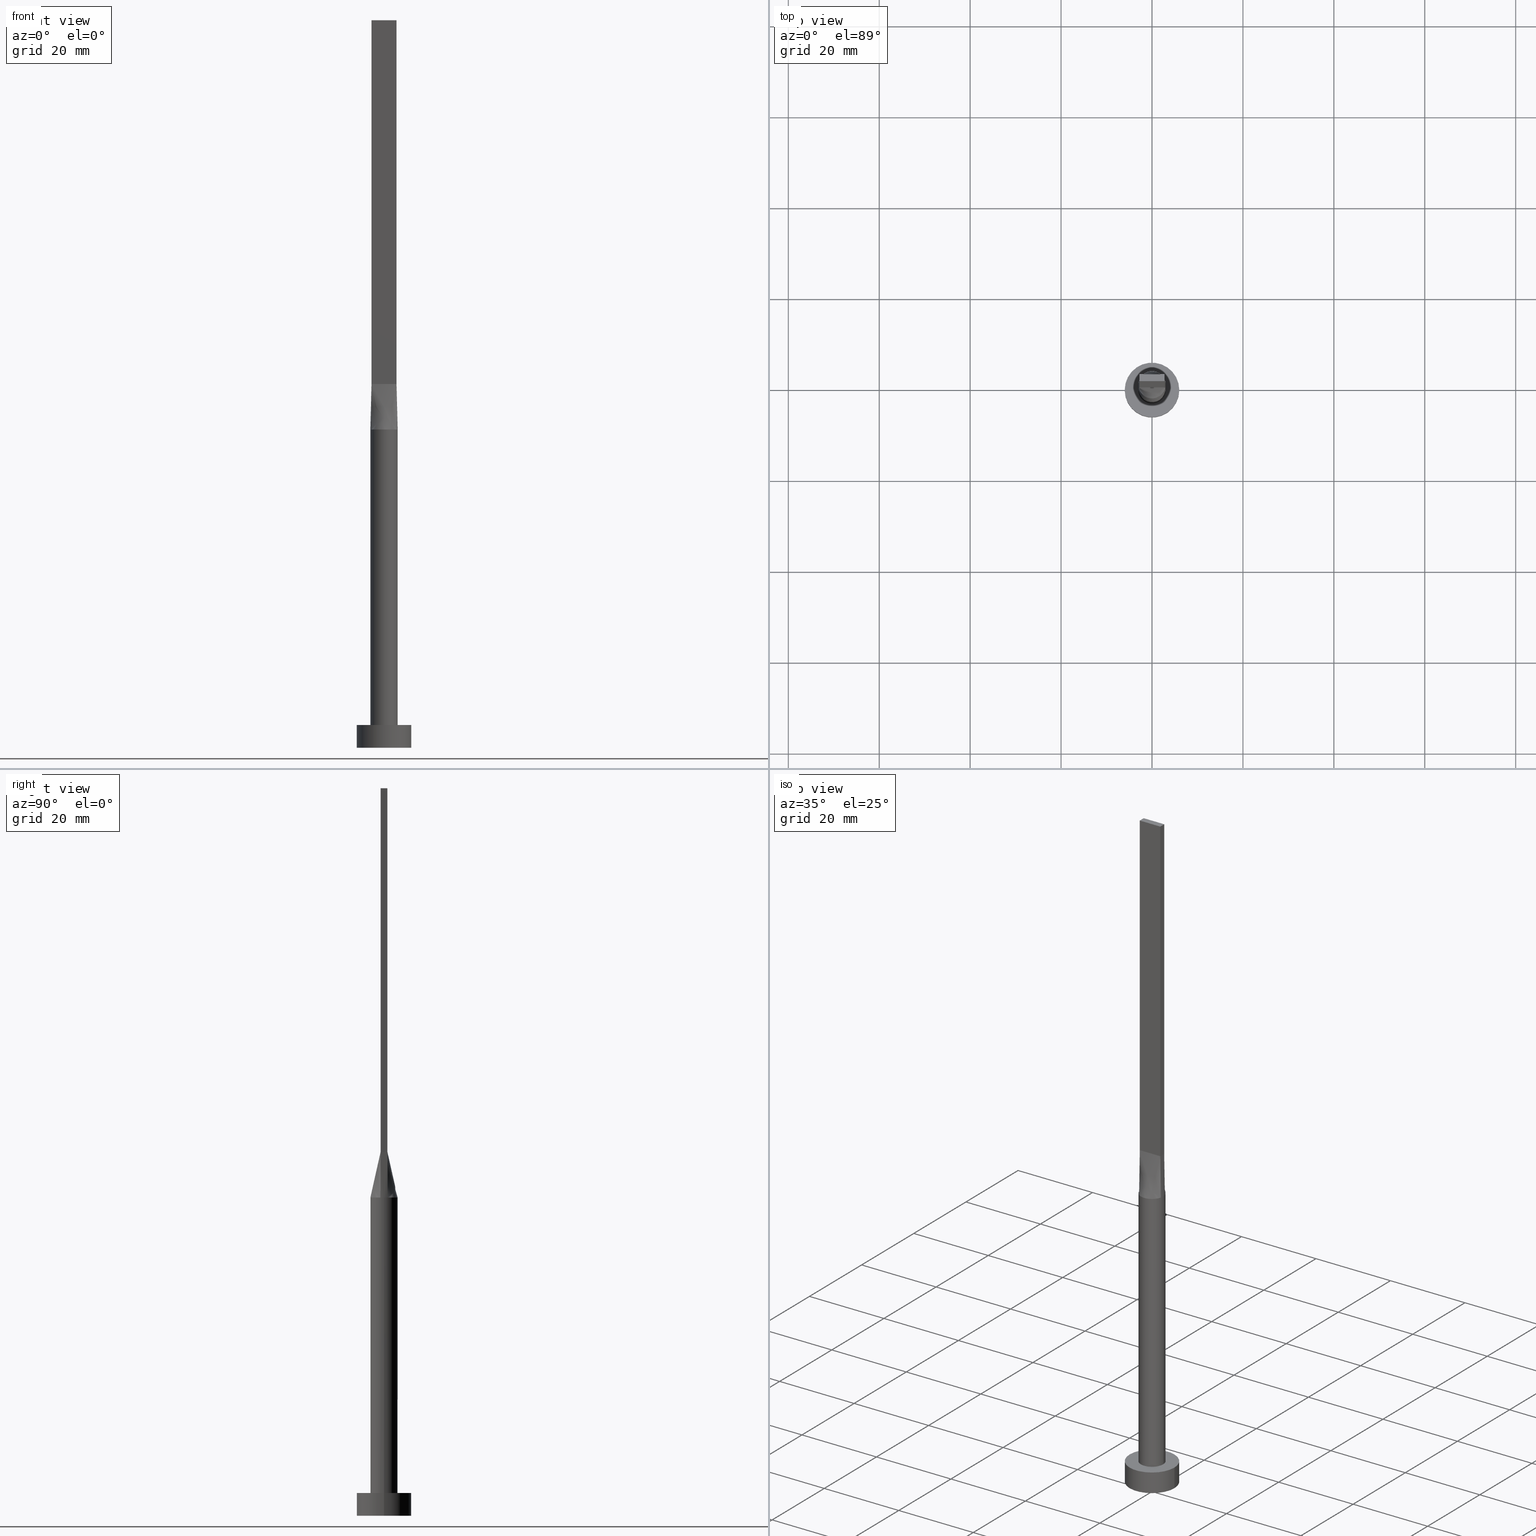
[diagram: canonical four-view strip — front | top / right | iso, engineering-drawing reading convention]
A machine part, canonical four-view strip (front | top / right | iso — engineering-drawing reading convention). The complete STEP part file that produces these views, byte-faithful:
ISO-10303-21;
HEADER;
FILE_DESCRIPTION (( 'STEP AP203' ),
    '1' );
FILE_NAME ('e4d2.STEP',
    '2023-02-13T11:39:31',
    ( '' ),
    ( '' ),
    'SwSTEP 2.0',
    'SolidWorks 2019',
    '' );
FILE_SCHEMA (( 'CONFIG_CONTROL_DESIGN' ));
ENDSEC;

DATA;
#1 = CARTESIAN_POINT ( 'NONE',  ( -1.833333333333335258, -0.7499999999999995559, 79.99999999999998579 ) ) ;
#2 = CARTESIAN_POINT ( 'NONE',  ( -2.442412046818596139, 1.765588549521969641, 70.00000000000001421 ) ) ;
#3 = LINE ( 'NONE', #549, #202 ) ;
#4 = CARTESIAN_POINT ( 'NONE',  ( -2.822145731856598783, -0.7696761086881626079, 75.00000000000001421 ) ) ;
#5 = DIRECTION ( 'NONE',  ( 0.000000000000000000, 0.000000000000000000, 1.000000000000000000 ) ) ;
#6 = CARTESIAN_POINT ( 'NONE',  ( 3.000000000000000888, 4.817174831141495148E-17, 70.00000000000000000 ) ) ;
#7 = VECTOR ( 'NONE', #359, 1000.000000000000000 ) ;
#8 = DIRECTION ( 'NONE',  ( 0.000000000000000000, 0.000000000000000000, 1.000000000000000000 ) ) ;
#9 = CARTESIAN_POINT ( 'NONE',  ( -2.999999999999999112, -0.2678361673275861388, 70.00000000000000000 ) ) ;
#10 = CARTESIAN_POINT ( 'NONE',  ( -2.750000000000000000, 0.7500000000000002220, 80.00000000000000000 ) ) ;
#11 = EDGE_CURVE ( 'NONE', #215, #514, #333, .T. ) ;
#12 = CARTESIAN_POINT ( 'NONE',  ( -2.520833333333333925, -0.7499999999999994449, 79.99999999999998579 ) ) ;
#13 = CARTESIAN_POINT ( 'NONE',  ( -1.751288851749021491, 2.458468820606022565, 70.00000000000001421 ) ) ;
#14 = CARTESIAN_POINT ( 'NONE',  ( 2.750000000000000000, -0.7499999999999997780, 80.00000000000000000 ) ) ;
#15 = EDGE_LOOP ( 'NONE', ( #210, #364, #472, #525, #371 ) ) ;
#16 =( LENGTH_UNIT ( ) NAMED_UNIT ( * ) SI_UNIT ( .MILLI., .METRE. ) );
#17 = VERTEX_POINT ( 'NONE', #42 ) ;
#18 = ORIENTED_EDGE ( 'NONE', *, *, #462, .T. ) ;
#19 = APPROVAL_STATUS ( 'not_yet_approved' ) ;
#20 = VERTEX_POINT ( 'NONE', #184 ) ;
#21 = CARTESIAN_POINT ( 'NONE',  ( -2.750000000000000000, -0.4999999999999994449, 79.99999999999998579 ) ) ;
#22 = DIRECTION ( 'NONE',  ( -0.000000000000000000, -0.000000000000000000, -1.000000000000000000 ) ) ;
#23 = VERTEX_POINT ( 'NONE', #412 ) ;
#24 = DIRECTION ( 'NONE',  ( -0.000000000000000000, -0.000000000000000000, -1.000000000000000000 ) ) ;
#25 = CARTESIAN_POINT ( 'NONE',  ( 2.291666666666665630, -0.7499999999999997780, 79.99999999999998579 ) ) ;
#26 = ORIENTED_EDGE ( 'NONE', *, *, #126, .F. ) ;
#27 = ORIENTED_EDGE ( 'NONE', *, *, #141, .F. ) ;
#28 = CARTESIAN_POINT ( 'NONE',  ( -2.894506632021299541, 0.7894116946786272626, 70.00000000000000000 ) ) ;
#29 = PERSON ( 'NEUR�EN�', 'NEUR�EN�', 'NEUR�EN�', ('NEUR�EN�'), ('NEUR�EN�'), ('NEUR�EN�') ) ;
#30 = PERSON_AND_ORGANIZATION ( #29, #209 ) ;
#31 = VERTEX_POINT ( 'NONE', #6 ) ;
#32 = CARTESIAN_POINT ( 'NONE',  ( 0.7628506052746800714, 2.924692134573154689, 70.00000000000001421 ) ) ;
#33 = CARTESIAN_POINT ( 'NONE',  ( 0.7628506052746800714, 2.924692134573154689, 70.00000000000001421 ) ) ;
#34 = APPROVAL_ROLE ( '' ) ;
#35 = CARTESIAN_POINT ( 'NONE',  ( 0.3818979204996085230, 3.000000000000001332, 70.00000000000000000 ) ) ;
#36 = AXIS2_PLACEMENT_3D ( 'NONE', #227, #494, #497 ) ;
#37 = CIRCLE ( 'NONE', #424, 3.000000000000000444 ) ;
#38 = CARTESIAN_POINT ( 'NONE',  ( -2.520833333333333037, 0.7500000000000002220, 79.99999999999998579 ) ) ;
#39 = APPROVAL_STATUS ( 'not_yet_approved' ) ;
#40 = B_SPLINE_SURFACE_WITH_KNOTS ( 'NONE', 3, 1, ( 
 ( #91, #10 ),
 ( #286, #544 ),
 ( #330, #423 ),
 ( #9, #557 ),
 ( #301, #21 ),
 ( #517, #201 ) ),
 .UNSPECIFIED., .F., .F., .F.,
 ( 4, 2, 4 ),
 ( 2, 2 ),
 ( 0.000000000000000000, 0.5000000000000000000, 1.000000000000000000 ),
 ( 0.000000000000000000, 1.000000000000000000 ),
 .UNSPECIFIED. ) ;
#41 = CARTESIAN_POINT ( 'NONE',  ( -2.750000000000000000, 0.7500000000000002220, 160.0000000000000000 ) ) ;
#42 = CARTESIAN_POINT ( 'NONE',  ( 3.000000000000000444, 3.673940397442060361E-16, 5.000000000000000000 ) ) ;
#43 = CARTESIAN_POINT ( 'NONE',  ( -2.750000000000000000, 0.7500000000000002220, 80.00000000000000000 ) ) ;
#44 = APPROVAL_PERSON_ORGANIZATION ( #254, #280, #304 ) ;
#45 = ORIENTED_EDGE ( 'NONE', *, *, #213, .F. ) ;
#46 = CARTESIAN_POINT ( 'NONE',  ( 0.9166666666666637431, -0.7499999999999995559, 79.99999999999998579 ) ) ;
#47 = LINE ( 'NONE', #256, #56 ) ;
#48 = FACE_OUTER_BOUND ( 'NONE', #484, .T. ) ;
#49 = ORIENTED_EDGE ( 'NONE', *, *, #235, .T. ) ;
#50 = CARTESIAN_POINT ( 'NONE',  ( -0.4583333333333366455, -0.7499999999999995559, 79.99999999999998579 ) ) ;
#51 = CARTESIAN_POINT ( 'NONE',  ( -1.833333333333332149, 0.7500000000000002220, 79.99999999999998579 ) ) ;
#52 = CC_DESIGN_DATE_AND_TIME_ASSIGNMENT ( #129, #172, ( #421 ) ) ;
#53 = ORIENTED_EDGE ( 'NONE', *, *, #569, .F. ) ;
#54 = LINE ( 'NONE', #417, #118 ) ;
#55 = DIRECTION ( 'NONE',  ( -0.000000000000000000, -0.000000000000000000, -1.000000000000000000 ) ) ;
#56 = VECTOR ( 'NONE', #218, 1000.000000000000114 ) ;
#57 = CARTESIAN_POINT ( 'NONE',  ( 2.733316749964666670, -1.269511353635832229, 69.99999999999998579 ) ) ;
#58 = APPROVAL_PERSON_ORGANIZATION ( #395, #388, #223 ) ;
#59 = DIRECTION ( 'NONE',  ( 1.000000000000000000, 0.000000000000000000, 0.000000000000000000 ) ) ;
#60 = CYLINDRICAL_SURFACE ( 'NONE', #153, 6.000000000000000888 ) ;
#61 = CARTESIAN_POINT ( 'NONE',  ( 0.000000000000000000, 0.000000000000000000, 70.00000000000000000 ) ) ;
#62 = PLANE ( 'NONE',  #163 ) ;
#63 = ADVANCED_FACE ( 'NONE', ( #407 ), #291, .T. ) ;
#64 = CARTESIAN_POINT ( 'NONE',  ( 2.963522232943966106, -0.5355060635301738259, 70.00000000000001421 ) ) ;
#65 =( NAMED_UNIT ( * ) SI_UNIT ( $, .STERADIAN. ) SOLID_ANGLE_UNIT ( ) );
#66 = CIRCLE ( 'NONE', #274, 6.000000000000000888 ) ;
#67 = ORIENTED_EDGE ( 'NONE', *, *, #298, .F. ) ;
#68 = CARTESIAN_POINT ( 'NONE',  ( 6.000000000000000888, 7.347880794884120722E-16, 5.000000000000000000 ) ) ;
#69 = APPLICATION_PROTOCOL_DEFINITION ( 'international standard', 'config_control_design', 1994, #562 ) ;
#70 = ORIENTED_EDGE ( 'NONE', *, *, #403, .F. ) ;
#71 = CARTESIAN_POINT ( 'NONE',  ( 3.000000000000000888, -0.2678361673275873600, 70.00000000000000000 ) ) ;
#72 = ORIENTED_EDGE ( 'NONE', *, *, #464, .T. ) ;
#73 = ORIENTED_EDGE ( 'NONE', *, *, #237, .T. ) ;
#74 = CC_DESIGN_PERSON_AND_ORGANIZATION_ASSIGNMENT ( #513, #467, ( #419 ) ) ;
#75 = CARTESIAN_POINT ( 'NONE',  ( 3.000000000000000444, 0.2678361673275868049, 70.00000000000000000 ) ) ;
#76 = VERTEX_POINT ( 'NONE', #536 ) ;
#77 = AXIS2_PLACEMENT_3D ( 'NONE', #258, #382, #157 ) ;
#78 = CARTESIAN_POINT ( 'NONE',  ( -2.442412046818596139, 1.765588549521969641, 70.00000000000001421 ) ) ;
#79 = SECURITY_CLASSIFICATION_LEVEL ( 'unclassified' ) ;
#80 = CARTESIAN_POINT ( 'NONE',  ( 1.447928580458859305, 2.653161878569118670, 70.00000000000000000 ) ) ;
#81 = EDGE_CURVE ( 'NONE', #173, #426, #185, .T. ) ;
#82 = SHAPE_DEFINITION_REPRESENTATION ( #310, #509 ) ;
#83 = AXIS2_PLACEMENT_3D ( 'NONE', #61, #195, #229 ) ;
#84 = COORDINATED_UNIVERSAL_TIME_OFFSET ( 1, 0, .AHEAD. ) ;
#85 = CARTESIAN_POINT ( 'NONE',  ( 2.520833333333333481, 0.7500000000000002220, 79.99999999999998579 ) ) ;
#86 = DIRECTION ( 'NONE',  ( -0.01442753284129401174, 0.003934781683989412894, 0.9998881756422629552 ) ) ;
#87 = EDGE_CURVE ( 'NONE', #514, #255, #130, .T. ) ;
#88 = FACE_OUTER_BOUND ( 'NONE', #217, .T. ) ;
#89 = CARTESIAN_POINT ( 'NONE',  ( 2.750000000000000000, -0.7499999999999997780, 160.0000000000000000 ) ) ;
#90 = CARTESIAN_POINT ( 'NONE',  ( 0.000000000000000000, 0.000000000000000000, 5.000000000000000000 ) ) ;
#91 = CARTESIAN_POINT ( 'NONE',  ( -2.894291463713196677, 0.7893522173763264371, 70.00000000000000000 ) ) ;
#92 = DIRECTION ( 'NONE',  ( 0.000000000000000000, 0.000000000000000000, 1.000000000000000000 ) ) ;
#93 = CARTESIAN_POINT ( 'NONE',  ( 2.750000000000000000, 0.7500000000000002220, 160.0000000000000000 ) ) ;
#94 = ORIENTED_EDGE ( 'NONE', *, *, #552, .F. ) ;
#95 = CC_DESIGN_PERSON_AND_ORGANIZATION_ASSIGNMENT ( #572, #319, ( #243 ) ) ;
#96 = CARTESIAN_POINT ( 'NONE',  ( 0.4583333333333300397, -0.7499999999999995559, 79.99999999999998579 ) ) ;
#97 = ORIENTED_EDGE ( 'NONE', *, *, #273, .T. ) ;
#98 = CARTESIAN_POINT ( 'NONE',  ( 1.833333333333331705, -0.7499999999999997780, 79.99999999999998579 ) ) ;
#99 = ORIENTED_EDGE ( 'NONE', *, *, #298, .T. ) ;
#100 = CARTESIAN_POINT ( 'NONE',  ( 2.750000000000000000, 0.7500000000000002220, 160.0000000000000000 ) ) ;
#101 = APPROVAL_PERSON_ORGANIZATION ( #122, #438, #34 ) ;
#102 = DIRECTION ( 'NONE',  ( 1.000000000000000000, 0.000000000000000000, 0.000000000000000000 ) ) ;
#103 = FACE_OUTER_BOUND ( 'NONE', #15, .T. ) ;
#104 = EDGE_CURVE ( 'NONE', #560, #167, #539, .T. ) ;
#105 = CARTESIAN_POINT ( 'NONE',  ( -2.442412046818594806, -1.765588549521968975, 69.99999999999998579 ) ) ;
#106 = CARTESIAN_POINT ( 'NONE',  ( 2.750000000000000000, -0.2499999999999995282, 79.99999999999998579 ) ) ;
#107 = CARTESIAN_POINT ( 'NONE',  ( -2.750000000000000000, 0.7500000000000002220, 80.00000000000000000 ) ) ;
#108 = CARTESIAN_POINT ( 'NONE',  ( 2.750000000000000000, -0.7499999999999997780, 80.00000000000000000 ) ) ;
#109 = CARTESIAN_POINT ( 'NONE',  ( 1.604166666666668073, 0.7500000000000002220, 79.99999999999998579 ) ) ;
#110 = DIRECTION ( 'NONE',  ( -0.000000000000000000, 0.000000000000000000, -1.000000000000000000 ) ) ;
#111 = VERTEX_POINT ( 'NONE', #43 ) ;
#112 = VERTEX_POINT ( 'NONE', #500 ) ;
#113 = ORIENTED_EDGE ( 'NONE', *, *, #376, .F. ) ;
#114 = ORIENTED_EDGE ( 'NONE', *, *, #188, .F. ) ;
#115 = ORIENTED_EDGE ( 'NONE', *, *, #468, .T. ) ;
#116 = CARTESIAN_POINT ( 'NONE',  ( 2.750000000000000000, 0.2500000000000004441, 79.99999999999998579 ) ) ;
#117 = ORIENTED_EDGE ( 'NONE', *, *, #322, .T. ) ;
#118 = VECTOR ( 'NONE', #372, 1000.000000000000000 ) ;
#119 = VERTEX_POINT ( 'NONE', #41 ) ;
#120 = VERTEX_POINT ( 'NONE', #147 ) ;
#121 = LOCAL_TIME ( 12, 39, 31.00000000000000000, #84 ) ;
#122 = PERSON_AND_ORGANIZATION ( #29, #209 ) ;
#123 = EDGE_LOOP ( 'NONE', ( #321, #99, #294, #164, #26, #397 ) ) ;
#124 = CARTESIAN_POINT ( 'NONE',  ( -2.750000000000000000, 0.7500000000000002220, 160.0000000000000000 ) ) ;
#125 = CARTESIAN_POINT ( 'NONE',  ( -6.000000000000000888, 0.000000000000000000, 5.000000000000000000 ) ) ;
#126 = EDGE_CURVE ( 'NONE', #426, #76, #578, .T. ) ;
#127 = CARTESIAN_POINT ( 'NONE',  ( -1.751288851749021491, 2.458468820606022565, 70.00000000000001421 ) ) ;
#128 = CYLINDRICAL_SURFACE ( 'NONE', #241, 3.000000000000000444 ) ;
#129 = DATE_AND_TIME ( #317, #211 ) ;
#130 = LINE ( 'NONE', #236, #224 ) ;
#131 = AXIS2_PLACEMENT_3D ( 'NONE', #446, #231, #186 ) ;
#132 = DIRECTION ( 'NONE',  ( -0.000000000000000000, -0.000000000000000000, -1.000000000000000000 ) ) ;
#133 = AXIS2_PLACEMENT_3D ( 'NONE', #242, #547, #59 ) ;
#134 = DATE_AND_TIME ( #439, #121 ) ;
#135 = DIRECTION ( 'NONE',  ( -0.000000000000000000, -0.000000000000000000, -1.000000000000000000 ) ) ;
#136 = CARTESIAN_POINT ( 'NONE',  ( 0.000000000000000000, 0.000000000000000000, 5.000000000000000000 ) ) ;
#137 = EDGE_CURVE ( 'NONE', #76, #435, #580, .T. ) ;
#138 = ORIENTED_EDGE ( 'NONE', *, *, #367, .F. ) ;
#139 = FACE_OUTER_BOUND ( 'NONE', #165, .T. ) ;
#140 = CYLINDRICAL_SURFACE ( 'NONE', #377, 6.000000000000000888 ) ;
#141 = EDGE_CURVE ( 'NONE', #501, #514, #323, .T. ) ;
#142 = LOCAL_TIME ( 12, 39, 31.00000000000000000, #470 ) ;
#143 = CARTESIAN_POINT ( 'NONE',  ( 2.822145731856598339, -0.7696761086881637182, 75.00000000000001421 ) ) ;
#144 = ORIENTED_EDGE ( 'NONE', *, *, #367, .T. ) ;
#145 = DIRECTION ( 'NONE',  ( 1.000000000000000000, 0.000000000000000000, 0.000000000000000000 ) ) ;
#146 = CARTESIAN_POINT ( 'NONE',  ( -0.4583333333333313164, 0.7500000000000003331, 79.99999999999998579 ) ) ;
#147 = CARTESIAN_POINT ( 'NONE',  ( -6.000000000000000888, 0.000000000000000000, 5.000000000000000000 ) ) ;
#148 = DIRECTION ( 'NONE',  ( 0.000000000000000000, 0.000000000000000000, 1.000000000000000000 ) ) ;
#149 = FACE_OUTER_BOUND ( 'NONE', #545, .T. ) ;
#150 = CARTESIAN_POINT ( 'NONE',  ( 0.000000000000000000, 0.000000000000000000, 5.000000000000000000 ) ) ;
#151 = FACE_OUTER_BOUND ( 'NONE', #313, .T. ) ;
#152 = DIRECTION ( 'NONE',  ( -1.000000000000000000, 0.000000000000000000, 0.000000000000000000 ) ) ;
#153 = AXIS2_PLACEMENT_3D ( 'NONE', #150, #332, #247 ) ;
#154 = CARTESIAN_POINT ( 'NONE',  ( -2.894291463713197121, -0.7893522173763257710, 70.00000000000000000 ) ) ;
#155 = CARTESIAN_POINT ( 'NONE',  ( 2.750000000000000000, -0.7499999999999997780, 80.00000000000000000 ) ) ;
#156 = ORIENTED_EDGE ( 'NONE', *, *, #581, .F. ) ;
#157 = DIRECTION ( 'NONE',  ( 1.000000000000000000, 0.000000000000000000, 0.000000000000000000 ) ) ;
#158 = EDGE_LOOP ( 'NONE', ( #171, #138, #488, #430 ) ) ;
#159 = CARTESIAN_POINT ( 'NONE',  ( -2.822145731856598339, 0.7696761086881630520, 75.00000000000001421 ) ) ;
#160 = EDGE_CURVE ( 'NONE', #314, #119, #320, .T. ) ;
#161 =( NAMED_UNIT ( * ) PLANE_ANGLE_UNIT ( ) SI_UNIT ( $, .RADIAN. ) );
#162 = CLOSED_SHELL ( 'NONE', ( #63, #269, #306, #166, #478, #222, #535, #556, #272, #384, #328, #574, #290, #491, #175 ) ) ;
#163 = AXIS2_PLACEMENT_3D ( 'NONE', #418, #422, #366 ) ;
#164 = ORIENTED_EDGE ( 'NONE', *, *, #137, .F. ) ;
#165 = EDGE_LOOP ( 'NONE', ( #471, #309, #434, #324 ) ) ;
#166 = ADVANCED_FACE ( 'NONE', ( #445, #88 ), #281, .T. ) ;
#167 = VERTEX_POINT ( 'NONE', #287 ) ;
#168 = DIRECTION ( 'NONE',  ( 0.000000000000000000, 0.000000000000000000, 1.000000000000000000 ) ) ;
#169 = DIRECTION ( 'NONE',  ( -0.000000000000000000, -0.000000000000000000, -1.000000000000000000 ) ) ;
#170 = ORIENTED_EDGE ( 'NONE', *, *, #552, .T. ) ;
#171 = ORIENTED_EDGE ( 'NONE', *, *, #259, .T. ) ;
#172 = DATE_TIME_ROLE ( 'creation_date' ) ;
#173 = VERTEX_POINT ( 'NONE', #451 ) ;
#174 =( GEOMETRIC_REPRESENTATION_CONTEXT ( 3 ) GLOBAL_UNCERTAINTY_ASSIGNED_CONTEXT ( ( #190 ) ) GLOBAL_UNIT_ASSIGNED_CONTEXT ( ( #16, #161, #65 ) ) REPRESENTATION_CONTEXT ( 'NONE', 'WORKASPACE' ) );
#175 = ADVANCED_FACE ( 'NONE', ( #48 ), #239, .T. ) ;
#176 = LINE ( 'NONE', #125, #522 ) ;
#177 = COORDINATED_UNIVERSAL_TIME_OFFSET ( 1, 0, .AHEAD. ) ;
#178 = CARTESIAN_POINT ( 'NONE',  ( -0.3818979204996078569, 3.000000000000000888, 70.00000000000001421 ) ) ;
#179 = CARTESIAN_POINT ( 'NONE',  ( -3.000000000000000444, 0.000000000000000000, 70.00000000000000000 ) ) ;
#180 = AXIS2_PLACEMENT_3D ( 'NONE', #455, #55, #277 ) ;
#181 = CARTESIAN_POINT ( 'NONE',  ( 2.894291463713197121, 0.7893522173763263261, 70.00000000000000000 ) ) ;
#182 = CC_DESIGN_APPROVAL ( #438, ( #361 ) ) ;
#183 = CALENDAR_DATE ( 2023, 13, 2 ) ;
#184 = CARTESIAN_POINT ( 'NONE',  ( -2.750000000000000000, -0.7499999999999994449, 160.0000000000000000 ) ) ;
#185 = B_SPLINE_CURVE_WITH_KNOTS ( 'NONE', 3,
 ( #553, #307, #516, #431, #440, #394, #400, #32, #35, #178, #212, #527, #127, #477, #78, #264, #436, #28 ),
 .UNSPECIFIED., .F., .F.,
 ( 4, 2, 2, 2, 2, 2, 2, 2, 4 ),
 ( 0.000000000000000000, 0.1250000000000000000, 0.2500000000000000000, 0.3750000000000000000, 0.5000000000000000000, 0.6250000000000000000, 0.7500000000000000000, 0.8750000000000000000, 1.000000000000000000 ),
 .UNSPECIFIED. ) ;
#186 = DIRECTION ( 'NONE',  ( 1.000000000000000000, 0.000000000000000000, -0.000000000000000000 ) ) ;
#187 = CARTESIAN_POINT ( 'NONE',  ( 0.000000000000000000, 0.000000000000000000, 5.000000000000000000 ) ) ;
#188 = EDGE_CURVE ( 'NONE', #215, #314, #542, .T. ) ;
#189 = EDGE_CURVE ( 'NONE', #119, #20, #442, .T. ) ;
#190 = UNCERTAINTY_MEASURE_WITH_UNIT (LENGTH_MEASURE( 1.000000000000000082E-05 ), #16, 'distance_accuracy_value', 'NONE');
#191 = DIRECTION ( 'NONE',  ( 0.000000000000000000, 0.000000000000000000, 1.000000000000000000 ) ) ;
#192 = VECTOR ( 'NONE', #135, 1000.000000000000000 ) ;
#193 = DIRECTION ( 'NONE',  ( 0.000000000000000000, -1.000000000000000000, 0.000000000000000000 ) ) ;
#194 = DIRECTION ( 'NONE',  ( 1.000000000000000000, 0.000000000000000000, -0.000000000000000000 ) ) ;
#195 = DIRECTION ( 'NONE',  ( 0.000000000000000000, 0.000000000000000000, 1.000000000000000000 ) ) ;
#196 = CARTESIAN_POINT ( 'NONE',  ( -2.291666666666667851, -0.7499999999999995559, 79.99999999999998579 ) ) ;
#197 = CARTESIAN_POINT ( 'NONE',  ( -2.248179627679386616, -2.014142483996539390, 70.00000000000000000 ) ) ;
#198 = CARTESIAN_POINT ( 'NONE',  ( -1.145833333333331705, 0.7500000000000002220, 79.99999999999998579 ) ) ;
#199 = ORIENTED_EDGE ( 'NONE', *, *, #486, .F. ) ;
#200 = CARTESIAN_POINT ( 'NONE',  ( -2.894506632021299541, 0.7894116946786272626, 70.00000000000000000 ) ) ;
#201 = CARTESIAN_POINT ( 'NONE',  ( -2.750000000000000000, -0.7499999999999993339, 80.00000000000000000 ) ) ;
#202 = VECTOR ( 'NONE', #460, 1000.000000000000000 ) ;
#203 = APPLICATION_PROTOCOL_DEFINITION ( 'international standard', 'config_control_design', 1994, #449 ) ;
#204 = PLANE ( 'NONE',  #551 ) ;
#205 = ORIENTED_EDGE ( 'NONE', *, *, #403, .T. ) ;
#206 = DIRECTION ( 'NONE',  ( 0.01442753284129401174, -0.003934781683989196054, 0.9998881756422629552 ) ) ;
#207 = VECTOR ( 'NONE', #441, 1000.000000000000000 ) ;
#208 = CARTESIAN_POINT ( 'NONE',  ( 2.963522232943965662, 0.5355060635301733818, 70.00000000000000000 ) ) ;
#209 = ORGANIZATION ( 'NEUR�EN�', 'NEUR�EN�', '' ) ;
#210 = ORIENTED_EDGE ( 'NONE', *, *, #126, .T. ) ;
#211 = LOCAL_TIME ( 12, 39, 31.00000000000000000, #534 ) ;
#212 = CARTESIAN_POINT ( 'NONE',  ( -0.7628506052746797383, 2.924692134573155133, 70.00000000000001421 ) ) ;
#213 = EDGE_CURVE ( 'NONE', #120, #560, #176, .T. ) ;
#214 = FACE_OUTER_BOUND ( 'NONE', #158, .T. ) ;
#215 = VERTEX_POINT ( 'NONE', #271 ) ;
#216 = ORIENTED_EDGE ( 'NONE', *, *, #160, .F. ) ;
#217 = EDGE_LOOP ( 'NONE', ( #115, #72 ) ) ;
#218 = DIRECTION ( 'NONE',  ( -0.01442753284129401174, -0.003934781683989391210, 0.9998881756422629552 ) ) ;
#219 = DIRECTION ( 'NONE',  ( 0.000000000000000000, 1.000000000000000000, 0.000000000000000000 ) ) ;
#220 = APPROVAL_DATE_TIME ( #134, #388 ) ;
#221 = ORIENTED_EDGE ( 'NONE', *, *, #188, .T. ) ;
#222 = ADVANCED_FACE ( 'NONE', ( #483 ), #128, .T. ) ;
#223 = APPROVAL_ROLE ( '' ) ;
#224 = VECTOR ( 'NONE', #576, 1000.000000000000000 ) ;
#225 = CARTESIAN_POINT ( 'NONE',  ( -0.2291666666666646313, 0.7500000000000003331, 79.99999999999998579 ) ) ;
#226 = CC_DESIGN_DATE_AND_TIME_ASSIGNMENT ( #524, #275, ( #361 ) ) ;
#227 = CARTESIAN_POINT ( 'NONE',  ( 0.000000000000000000, 0.000000000000000000, 70.00000000000000000 ) ) ;
#228 = CARTESIAN_POINT ( 'NONE',  ( 0.2291666666666687113, 0.7500000000000003331, 80.00000000000000000 ) ) ;
#229 = DIRECTION ( 'NONE',  ( 1.000000000000000000, 0.000000000000000000, 0.000000000000000000 ) ) ;
#230 = VECTOR ( 'NONE', #22, 1000.000000000000000 ) ;
#231 = DIRECTION ( 'NONE',  ( 0.000000000000000000, 0.000000000000000000, 1.000000000000000000 ) ) ;
#232 = EDGE_CURVE ( 'NONE', #76, #112, #563, .T. ) ;
#233 = DIRECTION ( 'NONE',  ( 0.000000000000000000, 0.000000000000000000, 1.000000000000000000 ) ) ;
#234 = CARTESIAN_POINT ( 'NONE',  ( -1.447928580458859749, -2.653161878569118226, 70.00000000000000000 ) ) ;
#235 = EDGE_CURVE ( 'NONE', #173, #255, #47, .T. ) ;
#236 = CARTESIAN_POINT ( 'NONE',  ( 2.750000000000000000, 0.7500000000000002220, 80.00000000000000000 ) ) ;
#237 = EDGE_CURVE ( 'NONE', #255, #111, #428, .T. ) ;
#238 = EDGE_CURVE ( 'NONE', #266, #167, #267, .T. ) ;
#239 = PLANE ( 'NONE',  #507 ) ;
#240 = CARTESIAN_POINT ( 'NONE',  ( -0.2291666666666700158, -0.7499999999999995559, 80.00000000000000000 ) ) ;
#241 = AXIS2_PLACEMENT_3D ( 'NONE', #318, #24, #567 ) ;
#242 = CARTESIAN_POINT ( 'NONE',  ( 0.000000000000000000, 0.000000000000000000, 0.000000000000000000 ) ) ;
#243 = PRODUCT_DEFINITION_FORMATION_WITH_SPECIFIED_SOURCE ( 'LIBOVOLN�', '', #419, .NOT_KNOWN. ) ;
#244 = CARTESIAN_POINT ( 'NONE',  ( 0.000000000000000000, 0.000000000000000000, 70.00000000000000000 ) ) ;
#245 = CARTESIAN_POINT ( 'NONE',  ( -0.9166666666666648533, 0.7500000000000002220, 79.99999999999998579 ) ) ;
#246 = DIRECTION ( 'NONE',  ( 0.000000000000000000, -0.000000000000000000, -1.000000000000000000 ) ) ;
#247 = DIRECTION ( 'NONE',  ( -1.000000000000000000, 0.000000000000000000, 0.000000000000000000 ) ) ;
#248 = DIRECTION ( 'NONE',  ( 0.000000000000000000, 0.000000000000000000, 1.000000000000000000 ) ) ;
#249 = PLANE ( 'NONE',  #311 ) ;
#250 = CARTESIAN_POINT ( 'NONE',  ( 2.750000000000000000, -0.4999999999999995559, 79.99999999999998579 ) ) ;
#251 = ORIENTED_EDGE ( 'NONE', *, *, #396, .T. ) ;
#252 = AXIS2_PLACEMENT_3D ( 'NONE', #90, #191, #375 ) ;
#253 = CARTESIAN_POINT ( 'NONE',  ( 1.145833333333335036, 0.7500000000000003331, 79.99999999999998579 ) ) ;
#254 = PERSON_AND_ORGANIZATION ( #29, #209 ) ;
#255 = VERTEX_POINT ( 'NONE', #381 ) ;
#256 = CARTESIAN_POINT ( 'NONE',  ( 2.822145731856598339, 0.7696761086881640512, 75.00000000000001421 ) ) ;
#257 = DIRECTION ( 'NONE',  ( 5.913830031739115543E-17, 1.000000000000000000, -0.000000000000000000 ) ) ;
#258 = CARTESIAN_POINT ( 'NONE',  ( 0.000000000000000000, 0.000000000000000000, 0.000000000000000000 ) ) ;
#259 = EDGE_CURVE ( 'NONE', #111, #23, #340, .T. ) ;
#260 = VECTOR ( 'NONE', #492, 1000.000000000000000 ) ;
#261 = CARTESIAN_POINT ( 'NONE',  ( 2.520833333333333037, -0.7499999999999997780, 79.99999999999998579 ) ) ;
#262 = CIRCLE ( 'NONE', #389, 3.000000000000000444 ) ;
#263 = ORIENTED_EDGE ( 'NONE', *, *, #87, .T. ) ;
#264 = CARTESIAN_POINT ( 'NONE',  ( -2.733316749964668002, 1.269511353635830453, 70.00000000000001421 ) ) ;
#265 = DATE_AND_TIME ( #183, #523 ) ;
#266 = VERTEX_POINT ( 'NONE', #68 ) ;
#267 = LINE ( 'NONE', #344, #207 ) ;
#268 = EDGE_LOOP ( 'NONE', ( #263, #94, #114, #343 ) ) ;
#269 = ADVANCED_FACE ( 'NONE', ( #461 ), #140, .T. ) ;
#270 = CARTESIAN_POINT ( 'NONE',  ( 2.830829925251657997, 1.022044525068634302, 70.00000000000001421 ) ) ;
#271 = CARTESIAN_POINT ( 'NONE',  ( 2.750000000000000000, -0.7499999999999997780, 160.0000000000000000 ) ) ;
#272 = ADVANCED_FACE ( 'NONE', ( #103 ), #40, .T. ) ;
#273 = EDGE_CURVE ( 'NONE', #426, #111, #379, .T. ) ;
#274 = AXIS2_PLACEMENT_3D ( 'NONE', #373, #8, #408 ) ;
#275 = DATE_TIME_ROLE ( 'classification_date' ) ;
#276 = CARTESIAN_POINT ( 'NONE',  ( 2.750000000000000000, -0.7499999999999997780, 160.0000000000000000 ) ) ;
#277 = DIRECTION ( 'NONE',  ( -1.000000000000000000, 0.000000000000000000, 0.000000000000000000 ) ) ;
#278 = ORIENTED_EDGE ( 'NONE', *, *, #322, .F. ) ;
#279 = DIRECTION ( 'NONE',  ( 1.000000000000000000, 0.000000000000000000, 0.000000000000000000 ) ) ;
#280 = APPROVAL ( #19, 'NEUR�EN�' ) ;
#281 = PLANE ( 'NONE',  #131 ) ;
#282 = DIRECTION ( 'NONE',  ( -0.000000000000000000, -0.000000000000000000, -1.000000000000000000 ) ) ;
#283 = ORIENTED_EDGE ( 'NONE', *, *, #235, .F. ) ;
#284 = VECTOR ( 'NONE', #206, 1000.000000000000114 ) ;
#285 = CARTESIAN_POINT ( 'NONE',  ( 2.894514141151844910, -0.7894138151126538494, 70.00000000000000000 ) ) ;
#286 = CARTESIAN_POINT ( 'NONE',  ( -2.963522232943965662, 0.5355060635301726046, 70.00000000000001421 ) ) ;
#287 = CARTESIAN_POINT ( 'NONE',  ( 6.000000000000000888, 7.347880794884120722E-16, 0.000000000000000000 ) ) ;
#288 = CARTESIAN_POINT ( 'NONE',  ( 1.447928580458857972, -2.653161878569119558, 69.99999999999998579 ) ) ;
#289 = LINE ( 'NONE', #415, #399 ) ;
#290 = ADVANCED_FACE ( 'NONE', ( #296 ), #249, .F. ) ;
#291 = CYLINDRICAL_SURFACE ( 'NONE', #180, 3.000000000000000444 ) ;
#292 = DIRECTION ( 'NONE',  ( 1.000000000000000000, 0.000000000000000000, 0.000000000000000000 ) ) ;
#293 = CARTESIAN_POINT ( 'NONE',  ( -1.447928580458858416, 2.653161878569119558, 70.00000000000001421 ) ) ;
#294 = ORIENTED_EDGE ( 'NONE', *, *, #427, .T. ) ;
#295 = CARTESIAN_POINT ( 'NONE',  ( -3.000000000000000444, 0.000000000000000000, 5.000000000000000000 ) ) ;
#296 = FACE_OUTER_BOUND ( 'NONE', #474, .T. ) ;
#297 = CARTESIAN_POINT ( 'NONE',  ( -0.3818979204996094667, -3.000000000000000000, 70.00000000000000000 ) ) ;
#298 = EDGE_CURVE ( 'NONE', #31, #17, #54, .T. ) ;
#299 = DIRECTION ( 'NONE',  ( 1.000000000000000000, -5.329070518200751394E-15, 0.000000000000000000 ) ) ;
#300 = DIRECTION ( 'NONE',  ( 0.000000000000000000, -1.000000000000000000, 0.000000000000000000 ) ) ;
#301 = CARTESIAN_POINT ( 'NONE',  ( -2.963522232943966106, -0.5355060635301720495, 70.00000000000000000 ) ) ;
#302 = AXIS2_PLACEMENT_3D ( 'NONE', #538, #92, #532 ) ;
#303 = CARTESIAN_POINT ( 'NONE',  ( 2.750000000000000000, 0.5000000000000003331, 79.99999999999998579 ) ) ;
#304 = APPROVAL_ROLE ( '' ) ;
#305 = ORIENTED_EDGE ( 'NONE', *, *, #189, .T. ) ;
#306 = ADVANCED_FACE ( 'NONE', ( #548 ), #60, .T. ) ;
#307 = CARTESIAN_POINT ( 'NONE',  ( 2.830829925251657997, 1.022044525068634302, 70.00000000000001421 ) ) ;
#308 = EDGE_LOOP ( 'NONE', ( #393, #97, #392, #283 ) ) ;
#309 = ORIENTED_EDGE ( 'NONE', *, *, #141, .T. ) ;
#310 = PRODUCT_DEFINITION_SHAPE ( 'NONE', 'NONE',  #421 ) ;
#311 = AXIS2_PLACEMENT_3D ( 'NONE', #554, #257, #351 ) ;
#312 = CARTESIAN_POINT ( 'NONE',  ( 0.000000000000000000, 0.000000000000000000, 70.00000000000000000 ) ) ;
#313 = EDGE_LOOP ( 'NONE', ( #476, #278 ) ) ;
#314 = VERTEX_POINT ( 'NONE', #420 ) ;
#315 = CALENDAR_DATE ( 2023, 13, 2 ) ;
#316 = FACE_OUTER_BOUND ( 'NONE', #308, .T. ) ;
#317 = CALENDAR_DATE ( 2023, 13, 2 ) ;
#318 = CARTESIAN_POINT ( 'NONE',  ( 0.000000000000000000, 0.000000000000000000, 70.00000000000000000 ) ) ;
#319 = PERSON_AND_ORGANIZATION_ROLE ( 'creator' ) ;
#320 = LINE ( 'NONE', #93, #7 ) ;
#321 = ORIENTED_EDGE ( 'NONE', *, *, #396, .F. ) ;
#322 = EDGE_CURVE ( 'NONE', #167, #560, #466, .T. ) ;
#323 = LINE ( 'NONE', #143, #515 ) ;
#324 = ORIENTED_EDGE ( 'NONE', *, *, #355, .T. ) ;
#325 = PLANE ( 'NONE',  #481 ) ;
#326 = CARTESIAN_POINT ( 'NONE',  ( -1.145833333333336368, -0.7499999999999995559, 79.99999999999998579 ) ) ;
#327 = DIRECTION ( 'NONE',  ( -0.01442753284129405511, -0.003934781683989273249, -0.9998881756422629552 ) ) ;
#328 = ADVANCED_FACE ( 'NONE', ( #149 ), #331, .F. ) ;
#329 = CARTESIAN_POINT ( 'NONE',  ( -1.604166666666669183, -0.7499999999999995559, 79.99999999999998579 ) ) ;
#330 = CARTESIAN_POINT ( 'NONE',  ( -3.000000000000000000, 0.2678361673275868049, 70.00000000000000000 ) ) ;
#331 = PLANE ( 'NONE',  #541 ) ;
#332 = DIRECTION ( 'NONE',  ( -0.000000000000000000, -0.000000000000000000, -1.000000000000000000 ) ) ;
#333 = LINE ( 'NONE', #89, #353 ) ;
#334 = ORIENTED_EDGE ( 'NONE', *, *, #87, .F. ) ;
#335 = CARTESIAN_POINT ( 'NONE',  ( 0.2291666666666632990, -0.7499999999999995559, 79.99999999999998579 ) ) ;
#336 = CIRCLE ( 'NONE', #416, 3.000000000000000444 ) ;
#337 = CARTESIAN_POINT ( 'NONE',  ( -2.750000000000000000, -0.7499999999999994449, 80.00000000000000000 ) ) ;
#338 = CC_DESIGN_PERSON_AND_ORGANIZATION_ASSIGNMENT ( #30, #489, ( #421 ) ) ;
#339 = CARTESIAN_POINT ( 'NONE',  ( 2.830829925251657997, -1.022044525068636078, 70.00000000000001421 ) ) ;
#340 = LINE ( 'NONE', #107, #530 ) ;
#341 = ORIENTED_EDGE ( 'NONE', *, *, #569, .T. ) ;
#342 = CARTESIAN_POINT ( 'NONE',  ( 0.9166666666666685170, 0.7500000000000003331, 79.99999999999998579 ) ) ;
#343 = ORIENTED_EDGE ( 'NONE', *, *, #11, .T. ) ;
#344 = CARTESIAN_POINT ( 'NONE',  ( 6.000000000000000888, 7.347880794884120722E-16, 5.000000000000000000 ) ) ;
#345 = ORIENTED_EDGE ( 'NONE', *, *, #160, .T. ) ;
#346 = ORIENTED_EDGE ( 'NONE', *, *, #468, .F. ) ;
#347 = CARTESIAN_POINT ( 'NONE',  ( 2.750000000000000000, 0.7500000000000002220, 160.0000000000000000 ) ) ;
#348 = CARTESIAN_POINT ( 'NONE',  ( -2.894291463713196677, 0.7893522173763257710, 70.00000000000000000 ) ) ;
#349 = EDGE_LOOP ( 'NONE', ( #70, #495 ) ) ;
#350 = CARTESIAN_POINT ( 'NONE',  ( -2.750000000000000000, 0.7500000000000002220, 80.00000000000000000 ) ) ;
#351 = DIRECTION ( 'NONE',  ( -1.000000000000000000, 5.913830031739115543E-17, 0.000000000000000000 ) ) ;
#352 = MANIFOLD_SOLID_BREP ( 'P�idat vysunut�m5', #162 ) ;
#353 = VECTOR ( 'NONE', #282, 1000.000000000000000 ) ;
#354 = COORDINATED_UNIVERSAL_TIME_OFFSET ( 1, 0, .AHEAD. ) ;
#355 = EDGE_CURVE ( 'NONE', #23, #112, #410, .T. ) ;
#356 = APPROVAL_DATE_TIME ( #265, #438 ) ;
#357 = CARTESIAN_POINT ( 'NONE',  ( -2.750000000000000000, 0.7500000000000002220, 160.0000000000000000 ) ) ;
#358 = CARTESIAN_POINT ( 'NONE',  ( 0.3818979204996085230, 3.000000000000001332, 70.00000000000000000 ) ) ;
#359 = DIRECTION ( 'NONE',  ( -1.000000000000000000, 0.000000000000000000, 0.000000000000000000 ) ) ;
#360 = CC_DESIGN_PERSON_AND_ORGANIZATION_ASSIGNMENT ( #363, #404, ( #361 ) ) ;
#361 = SECURITY_CLASSIFICATION ( '', '', #79 ) ;
#362 = CARTESIAN_POINT ( 'NONE',  ( 2.442412046818595250, 1.765588549521970529, 70.00000000000000000 ) ) ;
#363 = PERSON_AND_ORGANIZATION ( #29, #209 ) ;
#364 = ORIENTED_EDGE ( 'NONE', *, *, #232, .T. ) ;
#365 = CARTESIAN_POINT ( 'NONE',  ( -0.7628506052746809596, -2.924692134573154245, 70.00000000000000000 ) ) ;
#366 = DIRECTION ( 'NONE',  ( 0.000000000000000000, 0.000000000000000000, 1.000000000000000000 ) ) ;
#367 = EDGE_CURVE ( 'NONE', #20, #23, #289, .T. ) ;
#368 = EDGE_LOOP ( 'NONE', ( #568, #453, #117, #45 ) ) ;
#369 = CARTESIAN_POINT ( 'NONE',  ( 2.248179627679384840, -2.014142483996542055, 69.99999999999998579 ) ) ;
#370 = B_SPLINE_SURFACE_WITH_KNOTS ( 'NONE', 3, 1, ( 
 ( #154, #337 ),
 ( #414, #12 ),
 ( #505, #196 ),
 ( #105, #1 ),
 ( #197, #329 ),
 ( #540, #326 ),
 ( #234, #450 ),
 ( #365, #50 ),
 ( #297, #240 ),
 ( #504, #335 ),
 ( #502, #96 ),
 ( #288, #46 ),
 ( #409, #452 ),
 ( #369, #543 ),
 ( #506, #98 ),
 ( #57, #25 ),
 ( #339, #261 ),
 ( #555, #108 ) ),
 .UNSPECIFIED., .F., .F., .F.,
 ( 4, 2, 2, 2, 2, 2, 2, 2, 4 ),
 ( 2, 2 ),
 ( 0.000000000000000000, 0.1250000000000000000, 0.2500000000000000000, 0.3750000000000000000, 0.5000000000000000000, 0.6250000000000000000, 0.7500000000000000000, 0.8750000000000000000, 1.000000000000000000 ),
 ( 0.000000000000000000, 1.000000000000000000 ),
 .UNSPECIFIED. ) ;
#371 = ORIENTED_EDGE ( 'NONE', *, *, #273, .F. ) ;
#372 = DIRECTION ( 'NONE',  ( -0.000000000000000000, -0.000000000000000000, -1.000000000000000000 ) ) ;
#373 = CARTESIAN_POINT ( 'NONE',  ( 0.000000000000000000, 0.000000000000000000, 5.000000000000000000 ) ) ;
#374 = CARTESIAN_POINT ( 'NONE',  ( -1.604166666666665186, 0.7500000000000002220, 79.99999999999998579 ) ) ;
#375 = DIRECTION ( 'NONE',  ( 1.000000000000000000, 0.000000000000000000, 0.000000000000000000 ) ) ;
#376 = EDGE_CURVE ( 'NONE', #119, #111, #546, .T. ) ;
#377 = AXIS2_PLACEMENT_3D ( 'NONE', #136, #499, #152 ) ;
#378 = CC_DESIGN_APPROVAL ( #280, ( #421 ) ) ;
#379 = LINE ( 'NONE', #159, #284 ) ;
#380 = MECHANICAL_CONTEXT ( 'NONE', #449, 'mechanical' ) ;
#381 = CARTESIAN_POINT ( 'NONE',  ( 2.750000000000000000, 0.7500000000000002220, 80.00000000000000000 ) ) ;
#382 = DIRECTION ( 'NONE',  ( 0.000000000000000000, 0.000000000000000000, 1.000000000000000000 ) ) ;
#383 = EDGE_LOOP ( 'NONE', ( #519, #346, #386, #520 ) ) ;
#384 = ADVANCED_FACE ( 'NONE', ( #316 ), #566, .T. ) ;
#385 = DIRECTION ( 'NONE',  ( 1.000000000000000000, 0.000000000000000000, -0.000000000000000000 ) ) ;
#386 = ORIENTED_EDGE ( 'NONE', *, *, #213, .T. ) ;
#387 = VECTOR ( 'NONE', #571, 1000.000000000000000 ) ;
#388 = APPROVAL ( #573, 'NEUR�EN�' ) ;
#389 = AXIS2_PLACEMENT_3D ( 'NONE', #463, #233, #292 ) ;
#390 = ORIENTED_EDGE ( 'NONE', *, *, #232, .F. ) ;
#391 = CARTESIAN_POINT ( 'NONE',  ( -2.750000000000000000, 0.7500000000000002220, 160.0000000000000000 ) ) ;
#392 = ORIENTED_EDGE ( 'NONE', *, *, #237, .F. ) ;
#393 = ORIENTED_EDGE ( 'NONE', *, *, #81, .T. ) ;
#394 = CARTESIAN_POINT ( 'NONE',  ( 1.751288851749022379, 2.458468820606022565, 70.00000000000001421 ) ) ;
#395 = PERSON_AND_ORGANIZATION ( #29, #209 ) ;
#396 = EDGE_CURVE ( 'NONE', #31, #173, #579, .T. ) ;
#397 = ORIENTED_EDGE ( 'NONE', *, *, #81, .F. ) ;
#398 = APPROVAL_DATE_TIME ( #487, #280 ) ;
#399 = VECTOR ( 'NONE', #454, 1000.000000000000000 ) ;
#400 = CARTESIAN_POINT ( 'NONE',  ( 1.447928580458859305, 2.653161878569118670, 70.00000000000000000 ) ) ;
#401 = CARTESIAN_POINT ( 'NONE',  ( 2.733316749964668446, 1.269511353635831341, 70.00000000000000000 ) ) ;
#402 = CARTESIAN_POINT ( 'NONE',  ( -0.7628506052746797383, 2.924692134573155133, 70.00000000000001421 ) ) ;
#403 = EDGE_CURVE ( 'NONE', #435, #17, #37, .T. ) ;
#404 = PERSON_AND_ORGANIZATION_ROLE ( 'classification_officer' ) ;
#405 = AXIS2_PLACEMENT_3D ( 'NONE', #577, #168, #279 ) ;
#406 = VECTOR ( 'NONE', #132, 1000.000000000000000 ) ;
#407 = FACE_OUTER_BOUND ( 'NONE', #123, .T. ) ;
#408 = DIRECTION ( 'NONE',  ( 1.000000000000000000, 0.000000000000000000, 0.000000000000000000 ) ) ;
#409 = CARTESIAN_POINT ( 'NONE',  ( 1.751288851749020603, -2.458468820606023897, 70.00000000000001421 ) ) ;
#410 = LINE ( 'NONE', #4, #508 ) ;
#411 = CARTESIAN_POINT ( 'NONE',  ( 0.000000000000000000, 0.000000000000000000, 160.0000000000000000 ) ) ;
#412 = CARTESIAN_POINT ( 'NONE',  ( -2.750000000000000000, -0.7499999999999994449, 80.00000000000000000 ) ) ;
#413 = CARTESIAN_POINT ( 'NONE',  ( -2.750000000000000000, 0.7500000000000002220, 80.00000000000000000 ) ) ;
#414 = CARTESIAN_POINT ( 'NONE',  ( -2.830829925251658885, -1.022044525068633858, 70.00000000000001421 ) ) ;
#415 = CARTESIAN_POINT ( 'NONE',  ( -2.750000000000000000, -0.7499999999999994449, 160.0000000000000000 ) ) ;
#416 = AXIS2_PLACEMENT_3D ( 'NONE', #244, #148, #145 ) ;
#417 = CARTESIAN_POINT ( 'NONE',  ( 3.000000000000000444, 3.673940397442060361E-16, 70.00000000000000000 ) ) ;
#418 = CARTESIAN_POINT ( 'NONE',  ( 2.750000000000000000, -0.7499999999999997780, 160.0000000000000000 ) ) ;
#419 = PRODUCT ( 'e4d2', 'e4d2', '', ( #380 ) ) ;
#420 = CARTESIAN_POINT ( 'NONE',  ( 2.750000000000000000, 0.7500000000000002220, 160.0000000000000000 ) ) ;
#421 = PRODUCT_DEFINITION ( 'NEZN�M�', '', #243, #511 ) ;
#422 = DIRECTION ( 'NONE',  ( -1.000000000000000000, 0.000000000000000000, 0.000000000000000000 ) ) ;
#423 = CARTESIAN_POINT ( 'NONE',  ( -2.750000000000000000, 0.2500000000000002220, 79.99999999999998579 ) ) ;
#424 = AXIS2_PLACEMENT_3D ( 'NONE', #187, #537, #102 ) ;
#425 = DIRECTION ( 'NONE',  ( 0.000000000000000000, 0.000000000000000000, 1.000000000000000000 ) ) ;
#426 = VERTEX_POINT ( 'NONE', #200 ) ;
#427 = EDGE_CURVE ( 'NONE', #17, #435, #262, .T. ) ;
#428 = LINE ( 'NONE', #350, #387 ) ;
#429 = LINE ( 'NONE', #347, #230 ) ;
#430 = ORIENTED_EDGE ( 'NONE', *, *, #376, .T. ) ;
#431 = CARTESIAN_POINT ( 'NONE',  ( 2.442412046818595250, 1.765588549521970529, 70.00000000000000000 ) ) ;
#432 = VECTOR ( 'NONE', #473, 1000.000000000000000 ) ;
#433 = CARTESIAN_POINT ( 'NONE',  ( -2.750000000000000000, -0.7499999999999994449, 160.0000000000000000 ) ) ;
#434 = ORIENTED_EDGE ( 'NONE', *, *, #462, .F. ) ;
#435 = VERTEX_POINT ( 'NONE', #295 ) ;
#436 = CARTESIAN_POINT ( 'NONE',  ( -2.830829925251659329, 1.022044525068634302, 70.00000000000001421 ) ) ;
#437 = CARTESIAN_POINT ( 'NONE',  ( 1.751288851749022379, 2.458468820606022565, 70.00000000000001421 ) ) ;
#438 = APPROVAL ( #39, 'NEUR�EN�' ) ;
#439 = CALENDAR_DATE ( 2023, 13, 2 ) ;
#440 = CARTESIAN_POINT ( 'NONE',  ( 2.248179627679386172, 2.014142483996539834, 70.00000000000000000 ) ) ;
#441 = DIRECTION ( 'NONE',  ( -0.000000000000000000, -0.000000000000000000, -1.000000000000000000 ) ) ;
#442 = LINE ( 'NONE', #357, #260 ) ;
#443 = CARTESIAN_POINT ( 'NONE',  ( -0.3818979204996078569, 3.000000000000000888, 70.00000000000001421 ) ) ;
#444 = PERSON_AND_ORGANIZATION_ROLE ( 'design_supplier' ) ;
#445 = FACE_BOUND ( 'NONE', #349, .T. ) ;
#446 = CARTESIAN_POINT ( 'NONE',  ( 0.000000000000000000, 0.000000000000000000, 5.000000000000000000 ) ) ;
#447 = CIRCLE ( 'NONE', #458, 3.000000000000000444 ) ;
#448 = CARTESIAN_POINT ( 'NONE',  ( -2.248179627679385728, 2.014142483996540278, 70.00000000000001421 ) ) ;
#449 = APPLICATION_CONTEXT ( 'configuration controlled 3d designs of mechanical parts and assemblies' ) ;
#450 = CARTESIAN_POINT ( 'NONE',  ( -0.9166666666666698493, -0.7499999999999995559, 79.99999999999998579 ) ) ;
#451 = CARTESIAN_POINT ( 'NONE',  ( 2.894482401701604424, 0.7894050286368272662, 70.00000000000000000 ) ) ;
#452 = CARTESIAN_POINT ( 'NONE',  ( 1.145833333333330817, -0.7499999999999996669, 79.99999999999998579 ) ) ;
#453 = ORIENTED_EDGE ( 'NONE', *, *, #238, .T. ) ;
#454 = DIRECTION ( 'NONE',  ( -0.000000000000000000, -0.000000000000000000, -1.000000000000000000 ) ) ;
#455 = CARTESIAN_POINT ( 'NONE',  ( 0.000000000000000000, 0.000000000000000000, 70.00000000000000000 ) ) ;
#456 = FACE_OUTER_BOUND ( 'NONE', #268, .T. ) ;
#457 = CC_DESIGN_APPROVAL ( #388, ( #243 ) ) ;
#458 = AXIS2_PLACEMENT_3D ( 'NONE', #312, #425, #299 ) ;
#459 = PRODUCT_RELATED_PRODUCT_CATEGORY ( 'detail', '', ( #419 ) ) ;
#460 = DIRECTION ( 'NONE',  ( 1.000000000000000000, -5.913830031739115543E-17, 0.000000000000000000 ) ) ;
#461 = FACE_OUTER_BOUND ( 'NONE', #368, .T. ) ;
#462 = EDGE_CURVE ( 'NONE', #23, #514, #3, .T. ) ;
#463 = CARTESIAN_POINT ( 'NONE',  ( 0.000000000000000000, 0.000000000000000000, 5.000000000000000000 ) ) ;
#464 = EDGE_CURVE ( 'NONE', #266, #120, #66, .T. ) ;
#465 = CARTESIAN_POINT ( 'NONE',  ( 2.894291463713196677, 0.7893522173763277694, 70.00000000000000000 ) ) ;
#466 = CIRCLE ( 'NONE', #133, 6.000000000000000888 ) ;
#467 = PERSON_AND_ORGANIZATION_ROLE ( 'design_owner' ) ;
#468 = EDGE_CURVE ( 'NONE', #120, #266, #531, .T. ) ;
#469 = ORIENTED_EDGE ( 'NONE', *, *, #137, .T. ) ;
#470 = COORDINATED_UNIVERSAL_TIME_OFFSET ( 1, 0, .AHEAD. ) ;
#471 = ORIENTED_EDGE ( 'NONE', *, *, #486, .T. ) ;
#472 = ORIENTED_EDGE ( 'NONE', *, *, #355, .F. ) ;
#473 = DIRECTION ( 'NONE',  ( 1.000000000000000000, -5.913830031739115543E-17, 0.000000000000000000 ) ) ;
#474 = EDGE_LOOP ( 'NONE', ( #18, #565, #53, #144 ) ) ;
#475 = B_SPLINE_SURFACE_WITH_KNOTS ( 'NONE', 3, 1, ( 
 ( #564, #155 ),
 ( #64, #250 ),
 ( #71, #106 ),
 ( #75, #116 ),
 ( #208, #303 ),
 ( #465, #559 ) ),
 .UNSPECIFIED., .F., .F., .F.,
 ( 4, 2, 4 ),
 ( 2, 2 ),
 ( 0.000000000000000000, 0.5000000000000000000, 1.000000000000000000 ),
 ( 0.000000000000000000, 1.000000000000000000 ),
 .UNSPECIFIED. ) ;
#476 = ORIENTED_EDGE ( 'NONE', *, *, #104, .F. ) ;
#477 = CARTESIAN_POINT ( 'NONE',  ( -2.248179627679385728, 2.014142483996540278, 70.00000000000001421 ) ) ;
#478 = ADVANCED_FACE ( 'NONE', ( #151 ), #325, .F. ) ;
#479 = VECTOR ( 'NONE', #219, 1000.000000000000000 ) ;
#480 = CARTESIAN_POINT ( 'NONE',  ( 2.248179627679386172, 2.014142483996539834, 70.00000000000000000 ) ) ;
#481 = AXIS2_PLACEMENT_3D ( 'NONE', #550, #248, #510 ) ;
#482 = PERSON_AND_ORGANIZATION ( #29, #209 ) ;
#483 = FACE_OUTER_BOUND ( 'NONE', #485, .T. ) ;
#484 = EDGE_LOOP ( 'NONE', ( #345, #305, #341, #221 ) ) ;
#485 = EDGE_LOOP ( 'NONE', ( #67, #156, #199, #390, #469, #205 ) ) ;
#486 = EDGE_CURVE ( 'NONE', #112, #501, #336, .T. ) ;
#487 = DATE_AND_TIME ( #315, #142 ) ;
#488 = ORIENTED_EDGE ( 'NONE', *, *, #189, .F. ) ;
#489 = PERSON_AND_ORGANIZATION_ROLE ( 'creator' ) ;
#490 = LOCAL_TIME ( 12, 39, 31.00000000000000000, #354 ) ;
#491 = ADVANCED_FACE ( 'NONE', ( #456 ), #62, .F. ) ;
#492 = DIRECTION ( 'NONE',  ( 0.000000000000000000, -1.000000000000000000, 0.000000000000000000 ) ) ;
#493 = CALENDAR_DATE ( 2023, 13, 2 ) ;
#494 = DIRECTION ( 'NONE',  ( 0.000000000000000000, 0.000000000000000000, 1.000000000000000000 ) ) ;
#495 = ORIENTED_EDGE ( 'NONE', *, *, #427, .F. ) ;
#496 = CARTESIAN_POINT ( 'NONE',  ( 1.833333333333334370, 0.7500000000000002220, 79.99999999999998579 ) ) ;
#497 = DIRECTION ( 'NONE',  ( 1.000000000000000000, 0.000000000000000000, 0.000000000000000000 ) ) ;
#498 = CARTESIAN_POINT ( 'NONE',  ( -2.733316749964668002, 1.269511353635830453, 70.00000000000001421 ) ) ;
#499 = DIRECTION ( 'NONE',  ( -0.000000000000000000, -0.000000000000000000, -1.000000000000000000 ) ) ;
#500 = CARTESIAN_POINT ( 'NONE',  ( -2.894489875237701959, -0.7894071376467488577, 70.00000000000000000 ) ) ;
#501 = VERTEX_POINT ( 'NONE', #285 ) ;
#502 = CARTESIAN_POINT ( 'NONE',  ( 0.7628506052746785171, -2.924692134573155577, 70.00000000000000000 ) ) ;
#503 = CC_DESIGN_SECURITY_CLASSIFICATION ( #361, ( #243 ) ) ;
#504 = CARTESIAN_POINT ( 'NONE',  ( 0.3818979204996068022, -3.000000000000001332, 70.00000000000000000 ) ) ;
#505 = CARTESIAN_POINT ( 'NONE',  ( -2.733316749964668446, -1.269511353635829787, 69.99999999999998579 ) ) ;
#506 = CARTESIAN_POINT ( 'NONE',  ( 2.442412046818594362, -1.765588549521970751, 70.00000000000001421 ) ) ;
#507 = AXIS2_PLACEMENT_3D ( 'NONE', #411, #5, #194 ) ;
#508 = VECTOR ( 'NONE', #327, 1000.000000000000114 ) ;
#509 = ADVANCED_BREP_SHAPE_REPRESENTATION ( 'e4d2', ( #352, #77 ), #174 ) ;
#510 = DIRECTION ( 'NONE',  ( 1.000000000000000000, 0.000000000000000000, -0.000000000000000000 ) ) ;
#511 = DESIGN_CONTEXT ( 'detailed design', #562, 'design' ) ;
#512 = CARTESIAN_POINT ( 'NONE',  ( -6.000000000000000888, 0.000000000000000000, 0.000000000000000000 ) ) ;
#513 = PERSON_AND_ORGANIZATION ( #29, #209 ) ;
#514 = VERTEX_POINT ( 'NONE', #14 ) ;
#515 = VECTOR ( 'NONE', #86, 1000.000000000000114 ) ;
#516 = CARTESIAN_POINT ( 'NONE',  ( 2.733316749964668446, 1.269511353635831341, 70.00000000000000000 ) ) ;
#517 = CARTESIAN_POINT ( 'NONE',  ( -2.894291463713197121, -0.7893522173763259930, 70.00000000000000000 ) ) ;
#518 = LINE ( 'NONE', #433, #432 ) ;
#519 = ORIENTED_EDGE ( 'NONE', *, *, #238, .F. ) ;
#520 = ORIENTED_EDGE ( 'NONE', *, *, #104, .T. ) ;
#521 = FACE_OUTER_BOUND ( 'NONE', #570, .T. ) ;
#522 = VECTOR ( 'NONE', #169, 1000.000000000000000 ) ;
#523 = LOCAL_TIME ( 12, 39, 31.00000000000000000, #177 ) ;
#524 = DATE_AND_TIME ( #493, #490 ) ;
#525 = ORIENTED_EDGE ( 'NONE', *, *, #259, .F. ) ;
#526 = CARTESIAN_POINT ( 'NONE',  ( -2.830829925251659329, 1.022044525068634302, 70.00000000000001421 ) ) ;
#527 = CARTESIAN_POINT ( 'NONE',  ( -1.447928580458858416, 2.653161878569119558, 70.00000000000001421 ) ) ;
#528 = CC_DESIGN_PERSON_AND_ORGANIZATION_ASSIGNMENT ( #482, #444, ( #243 ) ) ;
#529 = CARTESIAN_POINT ( 'NONE',  ( -2.291666666666665630, 0.7500000000000002220, 79.99999999999998579 ) ) ;
#530 = VECTOR ( 'NONE', #300, 1000.000000000000000 ) ;
#531 = CIRCLE ( 'NONE', #252, 6.000000000000000888 ) ;
#532 = DIRECTION ( 'NONE',  ( 1.000000000000000000, 0.000000000000000000, 0.000000000000000000 ) ) ;
#533 = CARTESIAN_POINT ( 'NONE',  ( 2.750000000000000000, 0.7500000000000002220, 80.00000000000000000 ) ) ;
#534 = COORDINATED_UNIVERSAL_TIME_OFFSET ( 1, 0, .AHEAD. ) ;
#535 = ADVANCED_FACE ( 'NONE', ( #139 ), #370, .T. ) ;
#536 = CARTESIAN_POINT ( 'NONE',  ( -3.000000000000000000, -1.912111867153115409E-16, 70.00000000000000000 ) ) ;
#537 = DIRECTION ( 'NONE',  ( 0.000000000000000000, 0.000000000000000000, 1.000000000000000000 ) ) ;
#538 = CARTESIAN_POINT ( 'NONE',  ( 0.000000000000000000, 0.000000000000000000, 0.000000000000000000 ) ) ;
#539 = CIRCLE ( 'NONE', #302, 6.000000000000000888 ) ;
#540 = CARTESIAN_POINT ( 'NONE',  ( -1.751288851749022379, -2.458468820606022565, 69.99999999999998579 ) ) ;
#541 = AXIS2_PLACEMENT_3D ( 'NONE', #100, #193, #246 ) ;
#542 = LINE ( 'NONE', #276, #479 ) ;
#543 = CARTESIAN_POINT ( 'NONE',  ( 1.604166666666664520, -0.7499999999999997780, 79.99999999999998579 ) ) ;
#544 = CARTESIAN_POINT ( 'NONE',  ( -2.750000000000000000, 0.5000000000000002220, 79.99999999999998579 ) ) ;
#545 = EDGE_LOOP ( 'NONE', ( #73, #113, #216, #170 ) ) ;
#546 = LINE ( 'NONE', #124, #406 ) ;
#547 = DIRECTION ( 'NONE',  ( 0.000000000000000000, 0.000000000000000000, 1.000000000000000000 ) ) ;
#548 = FACE_OUTER_BOUND ( 'NONE', #383, .T. ) ;
#549 = CARTESIAN_POINT ( 'NONE',  ( -2.750000000000000000, -0.7499999999999994449, 80.00000000000000000 ) ) ;
#550 = CARTESIAN_POINT ( 'NONE',  ( 0.000000000000000000, 0.000000000000000000, 0.000000000000000000 ) ) ;
#551 = AXIS2_PLACEMENT_3D ( 'NONE', #391, #385, #110 ) ;
#552 = EDGE_CURVE ( 'NONE', #314, #255, #429, .T. ) ;
#553 = CARTESIAN_POINT ( 'NONE',  ( 2.894482401701604424, 0.7894050286368272662, 70.00000000000000000 ) ) ;
#554 = CARTESIAN_POINT ( 'NONE',  ( -2.750000000000000000, -0.7499999999999994449, 160.0000000000000000 ) ) ;
#555 = CARTESIAN_POINT ( 'NONE',  ( 2.894291463713196677, -0.7893522173763275473, 70.00000000000000000 ) ) ;
#556 = ADVANCED_FACE ( 'NONE', ( #521 ), #475, .T. ) ;
#557 = CARTESIAN_POINT ( 'NONE',  ( -2.750000000000000000, -0.2499999999999995837, 79.99999999999998579 ) ) ;
#558 = CARTESIAN_POINT ( 'NONE',  ( 0.4583333333333353132, 0.7500000000000003331, 79.99999999999998579 ) ) ;
#559 = CARTESIAN_POINT ( 'NONE',  ( 2.750000000000000000, 0.7500000000000002220, 80.00000000000000000 ) ) ;
#560 = VERTEX_POINT ( 'NONE', #512 ) ;
#561 = ORIENTED_EDGE ( 'NONE', *, *, #581, .T. ) ;
#562 = APPLICATION_CONTEXT ( 'configuration controlled 3d designs of mechanical parts and assemblies' ) ;
#563 = CIRCLE ( 'NONE', #405, 3.000000000000000444 ) ;
#564 = CARTESIAN_POINT ( 'NONE',  ( 2.894291463713196677, -0.7893522173763282135, 70.00000000000000000 ) ) ;
#565 = ORIENTED_EDGE ( 'NONE', *, *, #11, .F. ) ;
#566 = B_SPLINE_SURFACE_WITH_KNOTS ( 'NONE', 3, 1, ( 
 ( #181, #533 ),
 ( #270, #85 ),
 ( #401, #575 ),
 ( #362, #496 ),
 ( #480, #109 ),
 ( #437, #253 ),
 ( #80, #342 ),
 ( #33, #558 ),
 ( #358, #228 ),
 ( #443, #225 ),
 ( #402, #146 ),
 ( #293, #245 ),
 ( #13, #198 ),
 ( #448, #374 ),
 ( #2, #51 ),
 ( #498, #529 ),
 ( #526, #38 ),
 ( #348, #413 ) ),
 .UNSPECIFIED., .F., .F., .F.,
 ( 4, 2, 2, 2, 2, 2, 2, 2, 4 ),
 ( 2, 2 ),
 ( 0.000000000000000000, 0.1250000000000000000, 0.2500000000000000000, 0.3750000000000000000, 0.5000000000000000000, 0.6250000000000000000, 0.7500000000000000000, 0.8750000000000000000, 1.000000000000000000 ),
 ( 0.000000000000000000, 1.000000000000000000 ),
 .UNSPECIFIED. ) ;
#567 = DIRECTION ( 'NONE',  ( -1.000000000000000000, 0.000000000000000000, 0.000000000000000000 ) ) ;
#568 = ORIENTED_EDGE ( 'NONE', *, *, #464, .F. ) ;
#569 = EDGE_CURVE ( 'NONE', #20, #215, #518, .T. ) ;
#570 = EDGE_LOOP ( 'NONE', ( #561, #251, #49, #334, #27 ) ) ;
#571 = DIRECTION ( 'NONE',  ( -1.000000000000000000, -0.000000000000000000, -0.000000000000000000 ) ) ;
#572 = PERSON_AND_ORGANIZATION ( #29, #209 ) ;
#573 = APPROVAL_STATUS ( 'not_yet_approved' ) ;
#574 = ADVANCED_FACE ( 'NONE', ( #214 ), #204, .F. ) ;
#575 = CARTESIAN_POINT ( 'NONE',  ( 2.291666666666667407, 0.7500000000000002220, 79.99999999999998579 ) ) ;
#576 = DIRECTION ( 'NONE',  ( -0.000000000000000000, 1.000000000000000000, -0.000000000000000000 ) ) ;
#577 = CARTESIAN_POINT ( 'NONE',  ( 0.000000000000000000, 0.000000000000000000, 70.00000000000000000 ) ) ;
#578 = CIRCLE ( 'NONE', #36, 3.000000000000000444 ) ;
#579 = CIRCLE ( 'NONE', #83, 3.000000000000000444 ) ;
#580 = LINE ( 'NONE', #179, #192 ) ;
#581 = EDGE_CURVE ( 'NONE', #501, #31, #447, .T. ) ;
ENDSEC;
END-ISO-10303-21;
